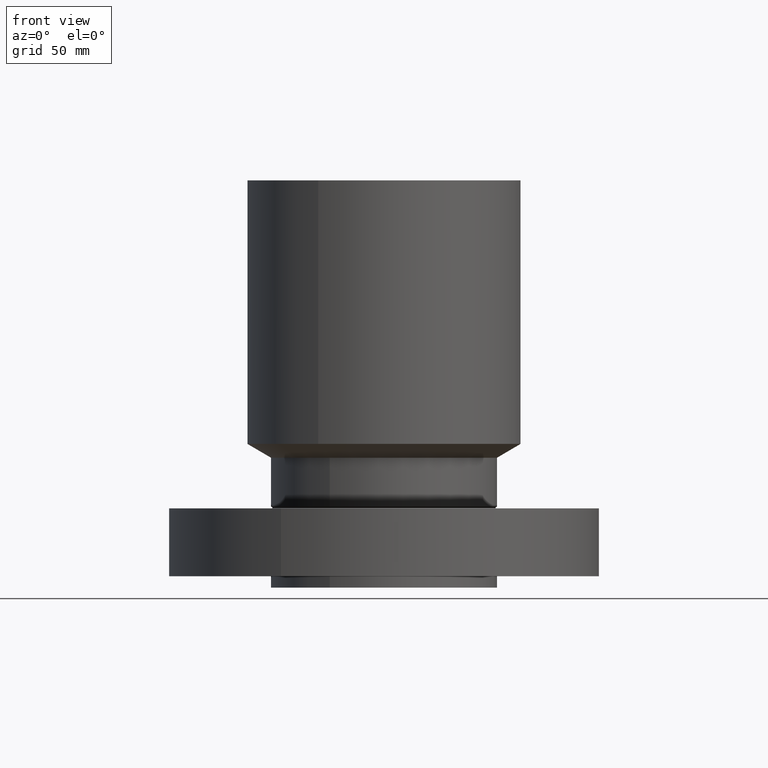
[diagram: clean part render]
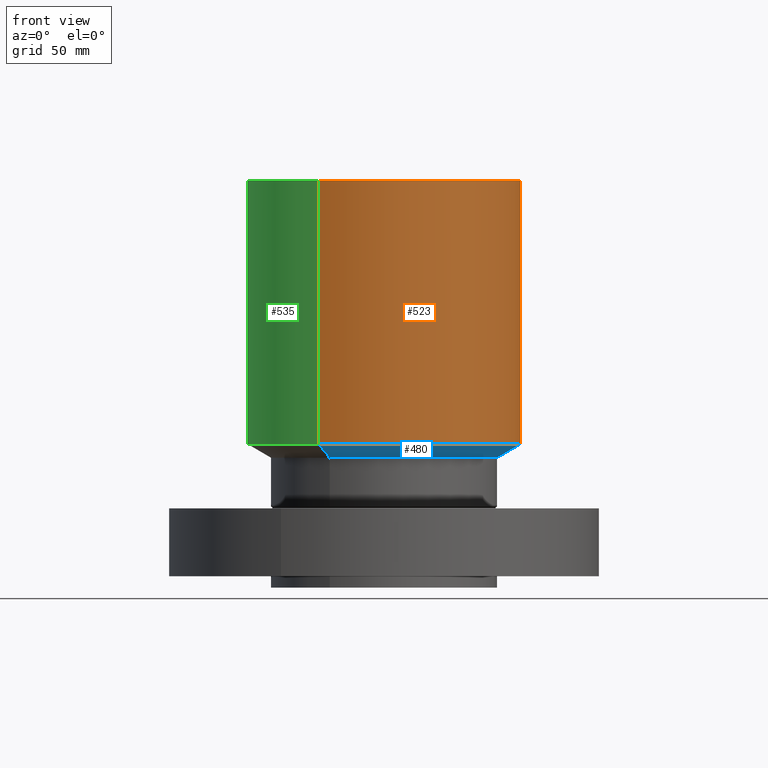
[diagram: same view with three faces highlighted in distinct colors, each labeled with its STEP entity id]
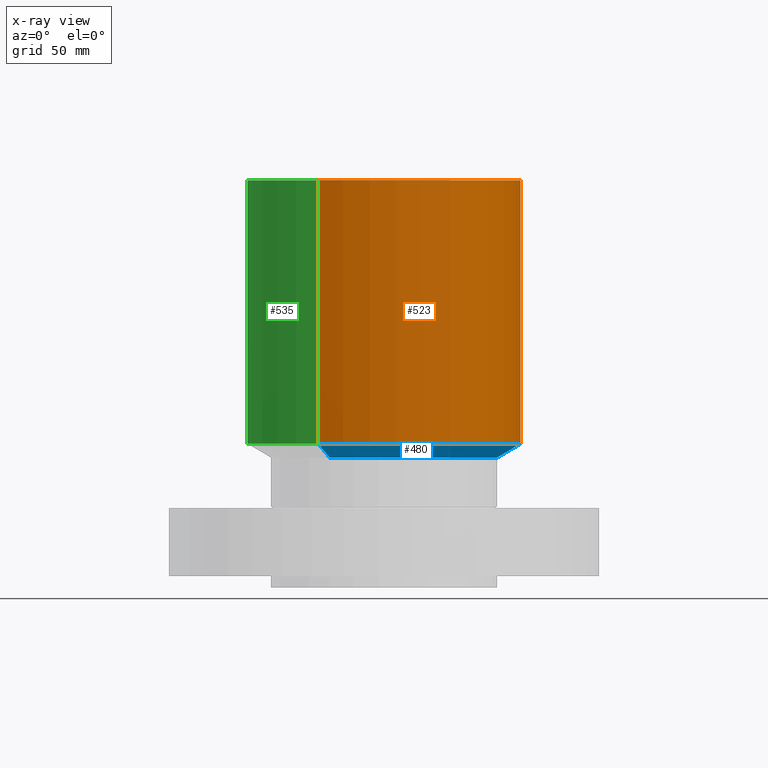
[diagram: x-ray of the same camera — body ghosted, the three highlighted faces saturated]
A machine part, front view with three faces highlighted in distinct colors.
The next image is the same camera in x-ray (body ghosted, the three faces saturated) — at least one of them is partly hidden behind the body in this view.
Their STEP definitions:

[orange] entity #523 — the highlighted cylindrical surface (partial cylindrical patch) has radius 76.962 mm, axis along (0, 0, -1).
#464=AXIS2_PLACEMENT_3D('Circle Axis2P3D',#462,#463,$) ;
#496=AXIS2_PLACEMENT_3D('Cylinder Axis2P3D',#493,#494,#495) ;
#507=AXIS2_PLACEMENT_3D('Circle Axis2P3D',#505,#506,$) ;
#459=CARTESIAN_POINT('Vertex',(1.45265938198,2.65907516254,2.92599564268)) ;
#462=CARTESIAN_POINT('Axis2P3D Location',(0.,0.,2.92599564268)) ;
#466=CARTESIAN_POINT('Vertex',(-1.45265938198,-2.65907516254,2.92599564268)) ;
#493=CARTESIAN_POINT('Axis2P3D Location',(0.,0.,4.25000000002)) ;
#498=CARTESIAN_POINT('Line Origine',(1.45265938198,2.65907516254,5.83799782136)) ;
#502=CARTESIAN_POINT('Vertex',(1.45265938198,2.65907516254,8.75000000003)) ;
#505=CARTESIAN_POINT('Axis2P3D Location',(0.,0.,8.75000000003)) ;
#509=CARTESIAN_POINT('Vertex',(-1.45265938198,-2.65907516254,8.75000000003)) ;
#512=CARTESIAN_POINT('Line Origine',(-1.45265938198,-2.65907516254,5.83799782136)) ;
#463=DIRECTION('Axis2P3D Direction',(-0.,0.,0.0393700787402)) ;
#494=DIRECTION('Axis2P3D Direction',(0.,0.,-0.0393700787402)) ;
#495=DIRECTION('Axis2P3D XDirection',(-0.0188750212049,-0.0345504945626,0.)) ;
#499=DIRECTION('Vector Direction',(0.,0.,-0.0393700787402)) ;
#506=DIRECTION('Axis2P3D Direction',(0.,0.,-0.0393700787402)) ;
#513=DIRECTION('Vector Direction',(0.,0.,-0.0393700787402)) ;
#500=VECTOR('Line Direction',#499,0.0393700787402) ;
#514=VECTOR('Line Direction',#513,0.0393700787402) ;
#518=ORIENTED_EDGE('',*,*,#468,.F.) ;
#519=ORIENTED_EDGE('',*,*,#504,.T.) ;
#520=ORIENTED_EDGE('',*,*,#511,.T.) ;
#521=ORIENTED_EDGE('',*,*,#516,.F.) ;
#523=ADVANCED_FACE('PartBody',(#522),#497,.T.) ;
#465=CIRCLE('generated circle',#464,3.03000000001) ;
#508=CIRCLE('generated circle',#507,3.03000000001) ;
#497=CYLINDRICAL_SURFACE('generated cylinder',#496,3.03000000001) ;
#468=EDGE_CURVE('',#460,#467,#465,.F.) ;
#504=EDGE_CURVE('',#460,#503,#501,.F.) ;
#511=EDGE_CURVE('',#503,#510,#508,.T.) ;
#516=EDGE_CURVE('',#467,#510,#515,.F.) ;
#517=EDGE_LOOP('',(#518,#519,#520,#521)) ;
#522=FACE_OUTER_BOUND('',#517,.T.) ;
#501=LINE('Line',#498,#500) ;
#515=LINE('Line',#512,#514) ;
#460=VERTEX_POINT('',#459) ;
#467=VERTEX_POINT('',#466) ;
#503=VERTEX_POINT('',#502) ;
#510=VERTEX_POINT('',#509) ;

[blue] entity #480 — the highlighted conical surface has half-angle 60 deg.
#421=AXIS2_PLACEMENT_3D('Circle Axis2P3D',#419,#420,$) ;
#453=AXIS2_PLACEMENT_3D('Cone Axis2P3D',#450,#451,#452) ;
#464=AXIS2_PLACEMENT_3D('Circle Axis2P3D',#462,#463,$) ;
#416=CARTESIAN_POINT('Vertex',(1.19856384652,2.19395640473,2.62000000001)) ;
#419=CARTESIAN_POINT('Axis2P3D Location',(0.,0.,2.62000000001)) ;
#423=CARTESIAN_POINT('Vertex',(-1.19856384652,-2.19395640473,2.62000000001)) ;
#450=CARTESIAN_POINT('Axis2P3D Location',(0.,0.,2.62000000001)) ;
#455=CARTESIAN_POINT('Line Origine',(1.32561161425,2.42651578364,2.77299782135)) ;
#459=CARTESIAN_POINT('Vertex',(1.45265938198,2.65907516254,2.92599564268)) ;
#462=CARTESIAN_POINT('Axis2P3D Location',(0.,0.,2.92599564268)) ;
#466=CARTESIAN_POINT('Vertex',(-1.45265938198,-2.65907516254,2.92599564268)) ;
#469=CARTESIAN_POINT('Line Origine',(-1.32561161425,-2.42651578364,2.77299782135)) ;
#420=DIRECTION('Axis2P3D Direction',(0.,0.,-0.0393700787402)) ;
#451=DIRECTION('Axis2P3D Direction',(-0.,-0.,0.0393700787402)) ;
#452=DIRECTION('Axis2P3D XDirection',(0.0188750212049,0.0345504945626,0.)) ;
#456=DIRECTION('Vector Direction',(0.0163462478604,0.0299216060045,0.0196850393701)) ;
#463=DIRECTION('Axis2P3D Direction',(-0.,0.,0.0393700787402)) ;
#470=DIRECTION('Vector Direction',(-0.0163462478604,-0.0299216060045,0.0196850393701)) ;
#457=VECTOR('Line Direction',#456,0.0393700787402) ;
#471=VECTOR('Line Direction',#470,0.0393700787402) ;
#475=ORIENTED_EDGE('',*,*,#425,.F.) ;
#476=ORIENTED_EDGE('',*,*,#461,.T.) ;
#477=ORIENTED_EDGE('',*,*,#468,.T.) ;
#478=ORIENTED_EDGE('',*,*,#473,.F.) ;
#480=ADVANCED_FACE('PartBody',(#479),#454,.T.) ;
#422=CIRCLE('generated circle',#421,2.50000000001) ;
#465=CIRCLE('generated circle',#464,3.03000000001) ;
#454=CONICAL_SURFACE('Cone',#453,2.50000000001,1.0471975512) ;
#425=EDGE_CURVE('',#417,#424,#422,.T.) ;
#461=EDGE_CURVE('',#417,#460,#458,.T.) ;
#468=EDGE_CURVE('',#460,#467,#465,.F.) ;
#473=EDGE_CURVE('',#424,#467,#472,.T.) ;
#474=EDGE_LOOP('',(#475,#476,#477,#478)) ;
#479=FACE_OUTER_BOUND('',#474,.T.) ;
#458=LINE('Line',#455,#457) ;
#472=LINE('Line',#469,#471) ;
#417=VERTEX_POINT('',#416) ;
#424=VERTEX_POINT('',#423) ;
#460=VERTEX_POINT('',#459) ;
#467=VERTEX_POINT('',#466) ;

[green] entity #535 — the highlighted cylindrical surface (partial cylindrical patch) has radius 76.962 mm, axis along (0, 0, -1).
#483=AXIS2_PLACEMENT_3D('Circle Axis2P3D',#481,#482,$) ;
#496=AXIS2_PLACEMENT_3D('Cylinder Axis2P3D',#493,#494,#495) ;
#526=AXIS2_PLACEMENT_3D('Circle Axis2P3D',#524,#525,$) ;
#459=CARTESIAN_POINT('Vertex',(1.45265938198,2.65907516254,2.92599564268)) ;
#466=CARTESIAN_POINT('Vertex',(-1.45265938198,-2.65907516254,2.92599564268)) ;
#481=CARTESIAN_POINT('Axis2P3D Location',(0.,0.,2.92599564268)) ;
#493=CARTESIAN_POINT('Axis2P3D Location',(0.,0.,4.25000000002)) ;
#498=CARTESIAN_POINT('Line Origine',(1.45265938198,2.65907516254,5.83799782136)) ;
#502=CARTESIAN_POINT('Vertex',(1.45265938198,2.65907516254,8.75000000003)) ;
#509=CARTESIAN_POINT('Vertex',(-1.45265938198,-2.65907516254,8.75000000003)) ;
#512=CARTESIAN_POINT('Line Origine',(-1.45265938198,-2.65907516254,5.83799782136)) ;
#524=CARTESIAN_POINT('Axis2P3D Location',(0.,0.,8.75000000003)) ;
#482=DIRECTION('Axis2P3D Direction',(-0.,0.,0.0393700787402)) ;
#494=DIRECTION('Axis2P3D Direction',(0.,0.,-0.0393700787402)) ;
#495=DIRECTION('Axis2P3D XDirection',(-0.0188750212049,-0.0345504945626,0.)) ;
#499=DIRECTION('Vector Direction',(0.,0.,-0.0393700787402)) ;
#513=DIRECTION('Vector Direction',(0.,0.,-0.0393700787402)) ;
#525=DIRECTION('Axis2P3D Direction',(0.,0.,-0.0393700787402)) ;
#500=VECTOR('Line Direction',#499,0.0393700787402) ;
#514=VECTOR('Line Direction',#513,0.0393700787402) ;
#530=ORIENTED_EDGE('',*,*,#485,.F.) ;
#531=ORIENTED_EDGE('',*,*,#516,.T.) ;
#532=ORIENTED_EDGE('',*,*,#528,.T.) ;
#533=ORIENTED_EDGE('',*,*,#504,.F.) ;
#535=ADVANCED_FACE('PartBody',(#534),#497,.T.) ;
#484=CIRCLE('generated circle',#483,3.03000000001) ;
#527=CIRCLE('generated circle',#526,3.03000000001) ;
#497=CYLINDRICAL_SURFACE('generated cylinder',#496,3.03000000001) ;
#485=EDGE_CURVE('',#467,#460,#484,.F.) ;
#504=EDGE_CURVE('',#460,#503,#501,.F.) ;
#516=EDGE_CURVE('',#467,#510,#515,.F.) ;
#528=EDGE_CURVE('',#510,#503,#527,.T.) ;
#529=EDGE_LOOP('',(#530,#531,#532,#533)) ;
#534=FACE_OUTER_BOUND('',#529,.T.) ;
#501=LINE('Line',#498,#500) ;
#515=LINE('Line',#512,#514) ;
#460=VERTEX_POINT('',#459) ;
#467=VERTEX_POINT('',#466) ;
#503=VERTEX_POINT('',#502) ;
#510=VERTEX_POINT('',#509) ;